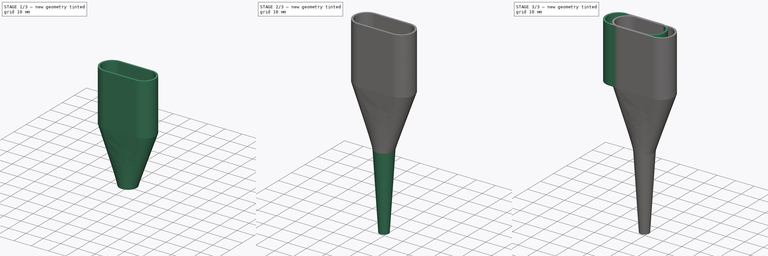
[diagram: build sequence overview — one tinted view per stage of 3, left to right]
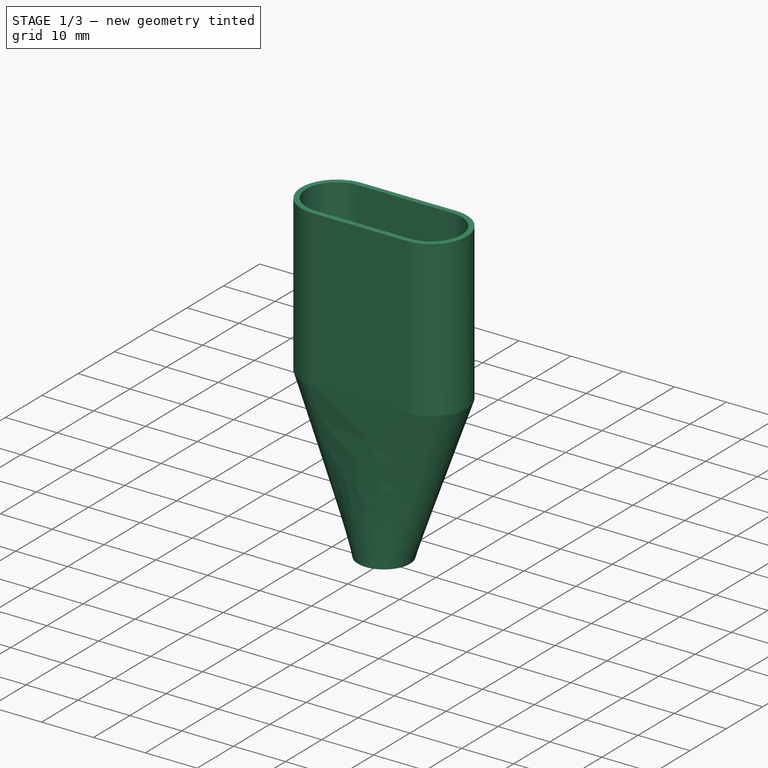
[diagram: stage 1 of 3 — iso view after this stage's code; geometry added in this stage tinted green]
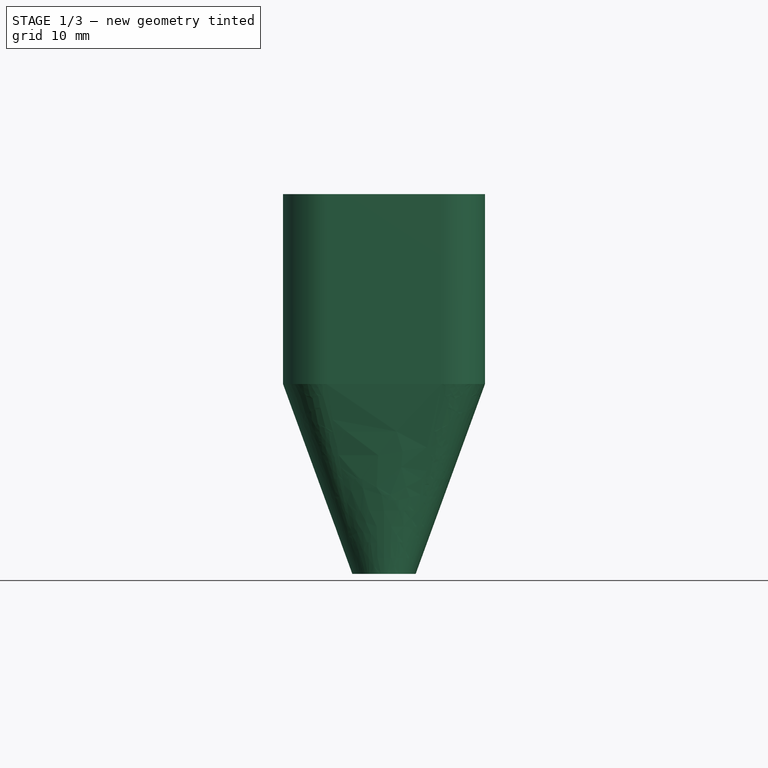
[diagram: stage 1 of 3 — front view after this stage's code; geometry added in this stage tinted green]
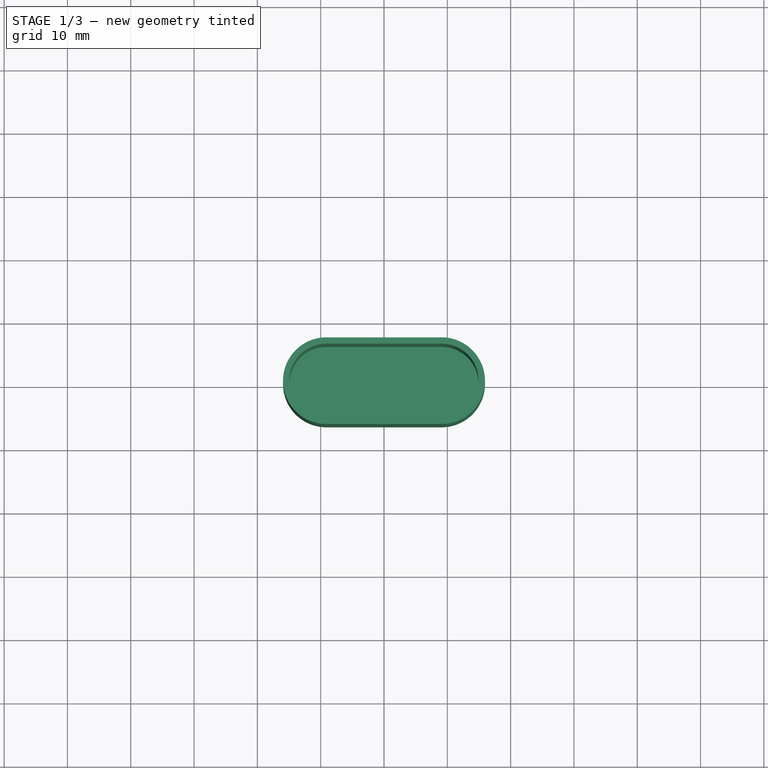
[diagram: stage 1 of 3 — top view after this stage's code; geometry added in this stage tinted green]
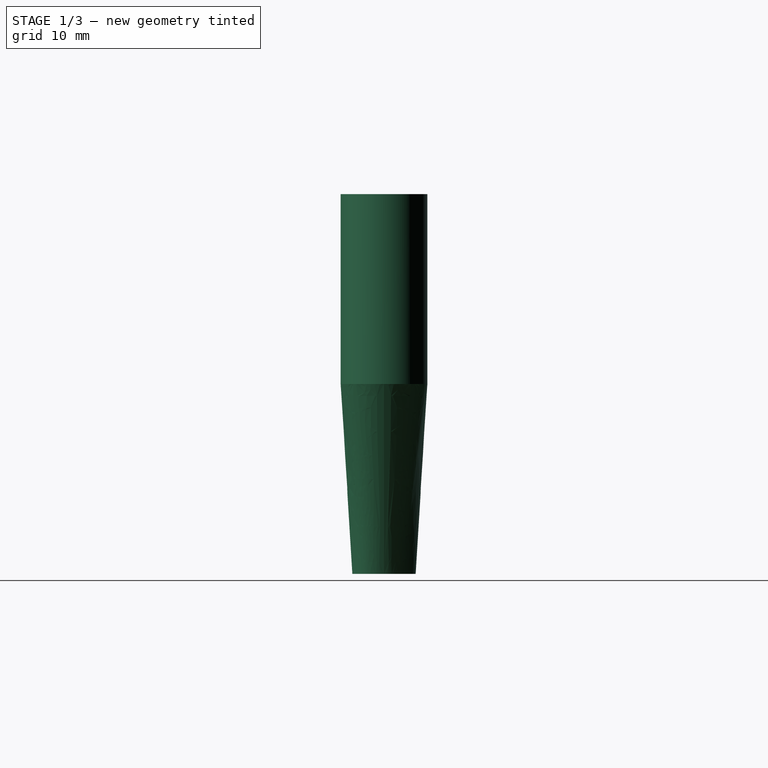
[diagram: stage 1 of 3 — right view after this stage's code; geometry added in this stage tinted green]
FCSTD DOCUMENT  (FreeCAD 1.0R39319 (Git))
Label: vacuum-pipe
License: All rights reserved
LicenseURL: https://en.wikipedia.org/wiki/All_rights_reserved
objects: Sketcher::SketchObject×12, PartDesign::Plane×3, PartDesign::Pad×2, PartDesign::Thickness×2, PartDesign::Body×2, PartDesign::AdditiveLoft×2, PartDesign::SubtractiveLoft×2
note: 53 computed .brp shape members not serialized (recipe doc carries the construction recipe); baked Part::Feature solids carry a one-line shape summary decoded from their .brp

FEATURE [Sketcher::SketchObject] Sketch002
  ArcFitTolerance = 1e-06
  AttachmentSupport = -> [XY_Plane]
  ExternalGeometry = -> [Thickness]
  FullyConstrained = false
  MakeInternals = false
  MapMode = 5
  sketch-geometry (4):
    g0: LineSegment StartX=-14.1861 StartY=-6.5017 StartZ=0 EndX=4.01389 EndY=-6.5017 EndZ=0
    g1: LineSegment StartX=4.0139 StartY=7.1983 StartZ=0 EndX=-14.1861 EndY=7.1983 EndZ=0
    g2: ArcOfCircle CenterX=-14.1861 CenterY=0.348304 CenterZ=0 NormalX=0 NormalY=0 NormalZ=1 AngleXU=0 Radius=6.85 StartAngle=1.5708 EndAngle=4.71239
    g3: ArcOfCircle CenterX=4.0139 CenterY=0.348304 CenterZ=0 NormalX=0 NormalY=0 NormalZ=1 AngleXU=0 Radius=6.85 StartAngle=4.71239 EndAngle=7.85398
  constraints (8):
    c: Horizontal(g0)
    c: Horizontal(g1)
    c: Distance(g1,g1) = 18.2
    c: Distance(g0,g1) = 13.7
    c: Symmetric(g1,g0,g2)
    c: Symmetric(g0,g1,g3)
    c: Coincident(g2,g0)
    c: Coincident(g3,g0)
FEATURE [PartDesign::Plane] DatumPlane
  AttachmentOffset = pos=(0,0,10) rot=(0,0,1;0rad)
  AttachmentSupport = -> [Thickness]
  Length = 60
  MapMode = 5
  Placement = pos=(0,0,-10) rot=(1,0,0;3.14159rad)
  ResizeMode = 0
  Width = 60
FEATURE [Sketcher::SketchObject] Sketch003
  ArcFitTolerance = 1e-06
  AttachmentSupport = -> [DatumPlane]
  FullyConstrained = true
  MakeInternals = false
  MapMode = 5
  Placement = pos=(0,0,-10) rot=(1,0,0;3.14159rad)
FEATURE [PartDesign::Body] Body
  AllowCompound = false
  Group = -> [Sketch001,Pad,Thickness,Sketch002,DatumPlane,Sketch003]
  Origin = -> Origin
  Tip = -> Thickness
FEATURE [Sketcher::SketchObject] Sketch
  ArcFitTolerance = 1e-06
  AttachmentSupport = -> [XY_Plane001]
  FullyConstrained = false
  MakeInternals = false
  MapMode = 5
  sketch-geometry (5):
    g0: LineSegment StartX=-9.1 StartY=-6.85 StartZ=0 EndX=9.1 EndY=-6.85 EndZ=0
    g1: LineSegment StartX=9.1 StartY=6.85 StartZ=0 EndX=-9.1 EndY=6.85 EndZ=0
    g2: GeomPoint [constr] X=0 Y=0 Z=0
    g3: ArcOfCircle CenterX=-9.1 CenterY=0 CenterZ=0 NormalX=0 NormalY=0 NormalZ=1 AngleXU=0 Radius=6.85 StartAngle=1.5708 EndAngle=4.71239
    g4: ArcOfCircle CenterX=9.1 CenterY=0 CenterZ=0 NormalX=0 NormalY=0 NormalZ=1 AngleXU=0 Radius=6.85 StartAngle=4.71239 EndAngle=7.85398
  constraints (13):
    c: Horizontal(g0)
    c: Horizontal(g1)
    c: Symmetric(g1,g0,g2)
    c: Distance(g0,g0) = 18.2
    c: Distance(g0,g1) = 13.7
    c: Coincident(g2,g-1)
    c: Diameter(g3) = 13.7
    c: Symmetric(g1,g0,g3)
    c: Diameter(g4) = 13.7
    c: Symmetric(g0,g1,g4)
    c: Coincident(g3,g0)
    c: Coincident(g3,g1)
    c: Coincident(g4,g0)
FEATURE [PartDesign::Pad] Pad001
  Direction = (0,0,1)
  Length = 30
  Length2 = 10
  Profile = -> Sketch
  ReferenceAxis = -> Sketch [N_Axis]
  Refine = true
  Suppressed = false
  Type = 0
FEATURE [PartDesign::Thickness] Thickness001
  Base = -> Pad001 [Face6,Face5]
  BaseFeature = -> Pad001
  Intersection = false
  Join = 0
  Mode = 0
  Refine = true
  Reversed = true
  SupportTransform = false
  Suppressed = false
  Value = 1
FEATURE [Sketcher::SketchObject] Sketch004  label="outer-1"
  ArcFitTolerance = 1e-06
  AttachmentSupport = -> [XY_Plane001]
  FullyConstrained = false
  MakeInternals = false
  MapMode = 5
  sketch-geometry (5):
    g0: LineSegment StartX=-9.1 StartY=-6.85 StartZ=0 EndX=9.1 EndY=-6.85 EndZ=0
    g1: LineSegment StartX=9.1 StartY=6.85 StartZ=0 EndX=-9.1 EndY=6.85 EndZ=0
    g2: GeomPoint [constr] X=0 Y=0 Z=0
    g3: ArcOfCircle CenterX=9.1 CenterY=0 CenterZ=0 NormalX=0 NormalY=0 NormalZ=1 AngleXU=0 Radius=6.85 StartAngle=4.71239 EndAngle=7.85398
    g4: ArcOfCircle CenterX=-9.1 CenterY=0 CenterZ=0 NormalX=0 NormalY=0 NormalZ=1 AngleXU=0 Radius=6.85 StartAngle=1.5708 EndAngle=4.71239
  constraints (13):
    c: Horizontal(g0)
    c: Horizontal(g1)
    c: Symmetric(g1,g0,g2)
    c: Distance(g0,g0) = 18.2
    c: Distance(g0,g1) = 13.7
    c: Coincident(g2,g-1)
    c: Diameter(g3) = 13.7
    c: Symmetric(g0,g1,g3)
    c: Diameter(g4) = 13.7
    c: Symmetric(g1,g0,g4)
    c: Coincident(g3,g0)
    c: Coincident(g4,g0)
    c: Coincident(g4,g1)
FEATURE [Sketcher::SketchObject] Sketch005  label="inner-1"
  ArcFitTolerance = 1e-06
  AttachmentSupport = -> [XY_Plane001]
  FullyConstrained = false
  MakeInternals = false
  MapMode = 5
  sketch-geometry (5):
    g0: LineSegment StartX=-9.1 StartY=-6 StartZ=0 EndX=9.1 EndY=-6 EndZ=0
    g1: LineSegment StartX=9.1 StartY=6 StartZ=0 EndX=-9.1 EndY=6 EndZ=0
    g2: GeomPoint [constr] X=0 Y=0 Z=0
    g3: ArcOfCircle CenterX=-9.1 CenterY=0 CenterZ=0 NormalX=0 NormalY=0 NormalZ=1 AngleXU=0 Radius=6 StartAngle=1.5708 EndAngle=4.71239
    g4: ArcOfCircle CenterX=9.1 CenterY=0 CenterZ=0 NormalX=0 NormalY=0 NormalZ=1 AngleXU=0 Radius=6 StartAngle=4.71239 EndAngle=7.85398
  constraints (13):
    c: Horizontal(g0)
    c: Horizontal(g1)
    c: Symmetric(g1,g0,g2)
    c: Distance(g0,g0) = 18.2
    c: Distance(g0,g1) = 12
    c: Coincident(g2,g-1)
    c: Diameter(g3) = 12
    c: Symmetric(g1,g0,g3)
    c: Diameter(g4) = 12
    c: Symmetric(g0,g1,g4)
    c: Coincident(g3,g0)
    c: Coincident(g3,g1)
    c: Coincident(g4,g0)
FEATURE [PartDesign::Plane] DatumPlane001  label="plane-2"
  AttachmentOffset = pos=(0,0,30) rot=(0,0,1;0rad)
  AttachmentSupport = -> [Thickness001]
  Length = 60
  MapMode = 5
  Placement = pos=(0,0,-30) rot=(1,0,0;3.14159rad)
  ResizeMode = 0
  Width = 60
FEATURE [Sketcher::SketchObject] Sketch006  label="outer-2"
  ArcFitTolerance = 1e-06
  AttachmentSupport = -> [DatumPlane001]
  FullyConstrained = true
  MakeInternals = false
  MapMode = 5
  Placement = pos=(0,0,-30) rot=(1,0,0;3.14159rad)
  sketch-geometry (1):
    g0: Circle CenterX=0 CenterY=0 CenterZ=0 NormalX=0 NormalY=0 NormalZ=1 AngleXU=0 Radius=5
  constraints (2):
    c: Diameter(g0) = 10
    c: Coincident(g0,g-1)
FEATURE [Sketcher::SketchObject] Sketch007  label="inner-2"
  ArcFitTolerance = 1e-06
  AttachmentSupport = -> [DatumPlane001]
  FullyConstrained = true
  MakeInternals = false
  MapMode = 5
  Placement = pos=(0,0,-30) rot=(1,0,0;3.14159rad)
  sketch-geometry (1):
    g0: Circle CenterX=0 CenterY=0 CenterZ=0 NormalX=0 NormalY=0 NormalZ=1 AngleXU=0 Radius=4
  constraints (2):
    c: Diameter(g0) = 8
    c: Coincident(g0,g-1)
FEATURE [PartDesign::AdditiveLoft] AdditiveLoft
  BaseFeature = -> Thickness001
  Closed = false
  Profile = -> Sketch004
  Refine = true
  Ruled = false
  Sections = -> [Sketch006]
  Suppressed = false
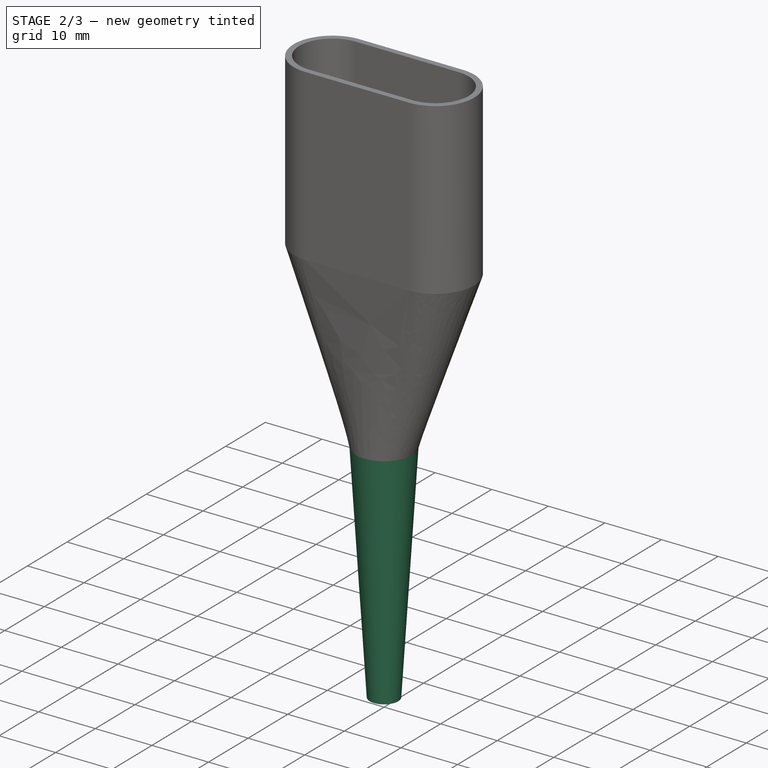
[diagram: stage 2 of 3 — iso view after this stage's code; geometry added in this stage tinted green]
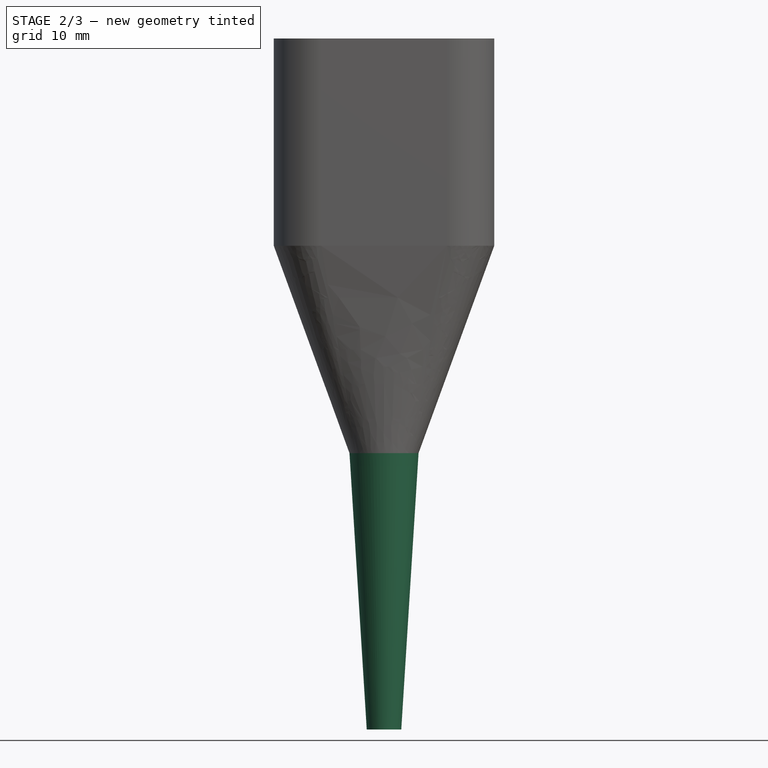
[diagram: stage 2 of 3 — front view after this stage's code; geometry added in this stage tinted green]
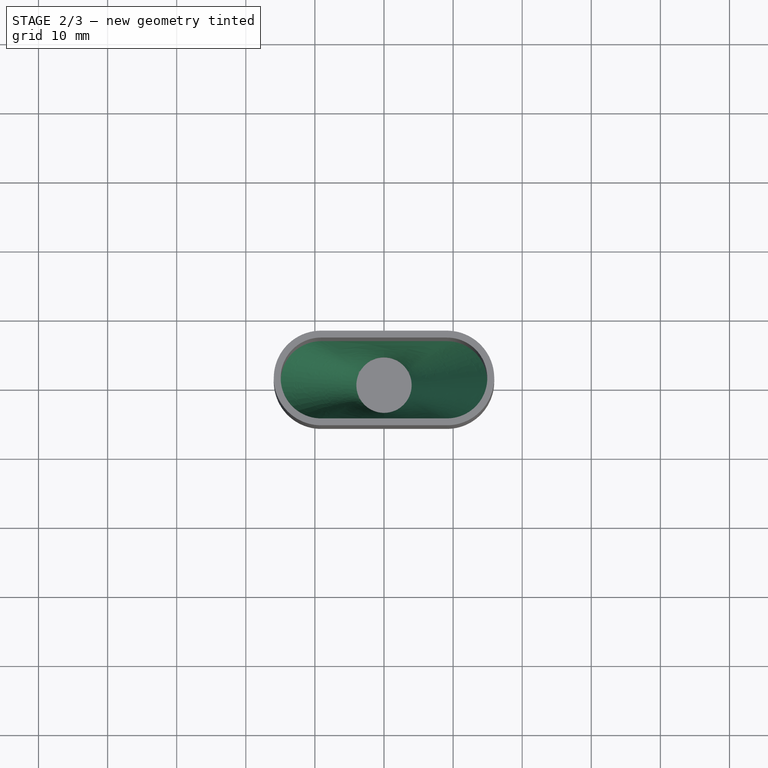
[diagram: stage 2 of 3 — top view after this stage's code; geometry added in this stage tinted green]
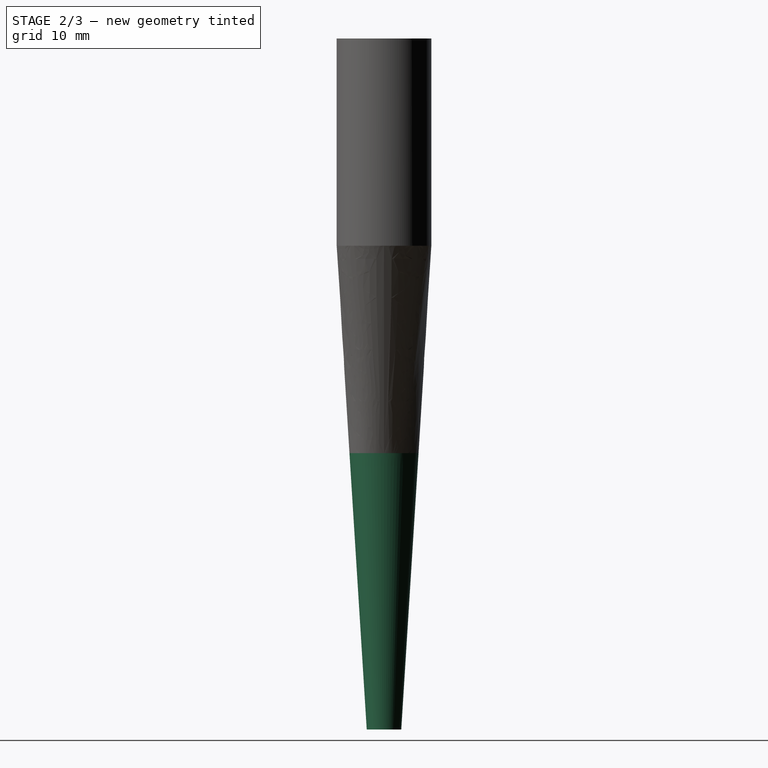
[diagram: stage 2 of 3 — right view after this stage's code; geometry added in this stage tinted green]
FEATURE [PartDesign::SubtractiveLoft] SubtractiveLoft
  BaseFeature = -> AdditiveLoft
  Closed = false
  Profile = -> Sketch005
  Refine = true
  Ruled = false
  Sections = -> [Sketch007]
  Suppressed = false
FEATURE [PartDesign::Plane] DatumPlane002  label="plane-3"
  AttachmentOffset = pos=(0,0,40) rot=(0,0,1;0rad)
  AttachmentSupport = -> [SubtractiveLoft]
  Length = 60
  MapMode = 5
  Placement = pos=(0,0,-70) rot=(1,0,0;3.14159rad)
  ResizeMode = 0
  Width = 60
FEATURE [Sketcher::SketchObject] Sketch008  label="outer-3"
  ArcFitTolerance = 1e-06
  AttachmentSupport = -> [DatumPlane002]
  FullyConstrained = true
  MakeInternals = false
  MapMode = 5
  Placement = pos=(0,0,-70) rot=(1,0,0;3.14159rad)
  sketch-geometry (1):
    g0: Circle CenterX=0 CenterY=0 CenterZ=0 NormalX=0 NormalY=0 NormalZ=1 AngleXU=0 Radius=2.5
  constraints (2):
    c: Diameter(g0) = 5
    c: Coincident(g0,g-1)
FEATURE [Sketcher::SketchObject] Sketch009  label="inner-3"
  ArcFitTolerance = 1e-06
  AttachmentSupport = -> [DatumPlane002]
  FullyConstrained = true
  MakeInternals = false
  MapMode = 5
  Placement = pos=(0,0,-70) rot=(1,0,0;3.14159rad)
  sketch-geometry (1):
    g0: Circle CenterX=0 CenterY=0 CenterZ=0 NormalX=0 NormalY=0 NormalZ=1 AngleXU=0 Radius=2
  constraints (2):
    c: Diameter(g0) = 4
    c: Coincident(g0,g-1)
FEATURE [Sketcher::SketchObject] Sketch010  label="outer-2b"
  ArcFitTolerance = 1e-06
  AttachmentSupport = -> [DatumPlane001]
  FullyConstrained = true
  MakeInternals = false
  MapMode = 5
  Placement = pos=(0,0,-30) rot=(1,0,0;3.14159rad)
  sketch-geometry (1):
    g0: Circle CenterX=0 CenterY=0 CenterZ=0 NormalX=0 NormalY=0 NormalZ=1 AngleXU=0 Radius=5
  constraints (2):
    c: Diameter(g0) = 10
    c: Coincident(g0,g-1)
FEATURE [PartDesign::AdditiveLoft] AdditiveLoft001
  BaseFeature = -> SubtractiveLoft
  Closed = false
  Profile = -> Sketch010
  Refine = true
  Ruled = false
  Sections = -> [Sketch008]
  Suppressed = false
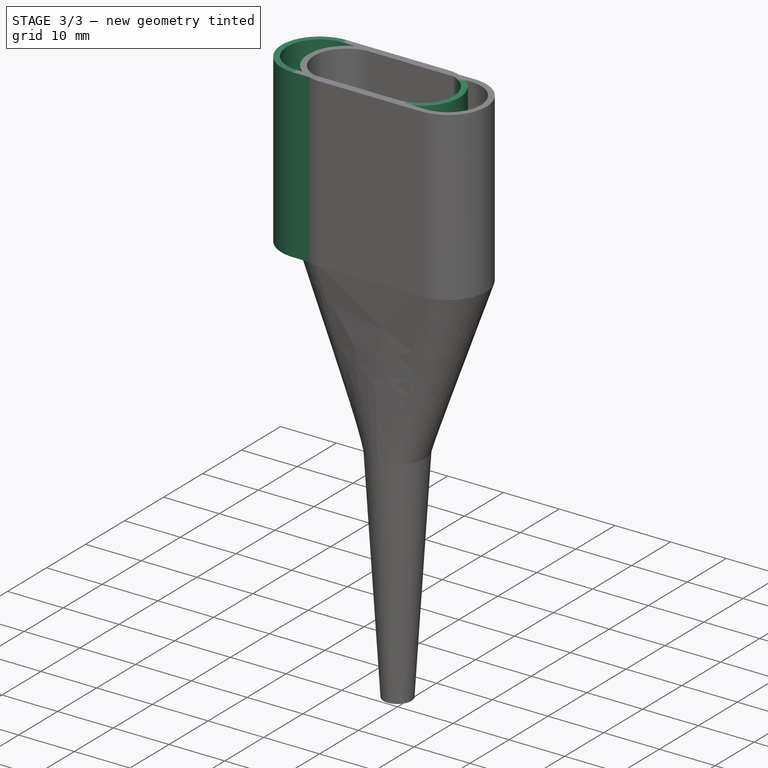
[diagram: stage 3 of 3 — iso view after this stage's code; geometry added in this stage tinted green]
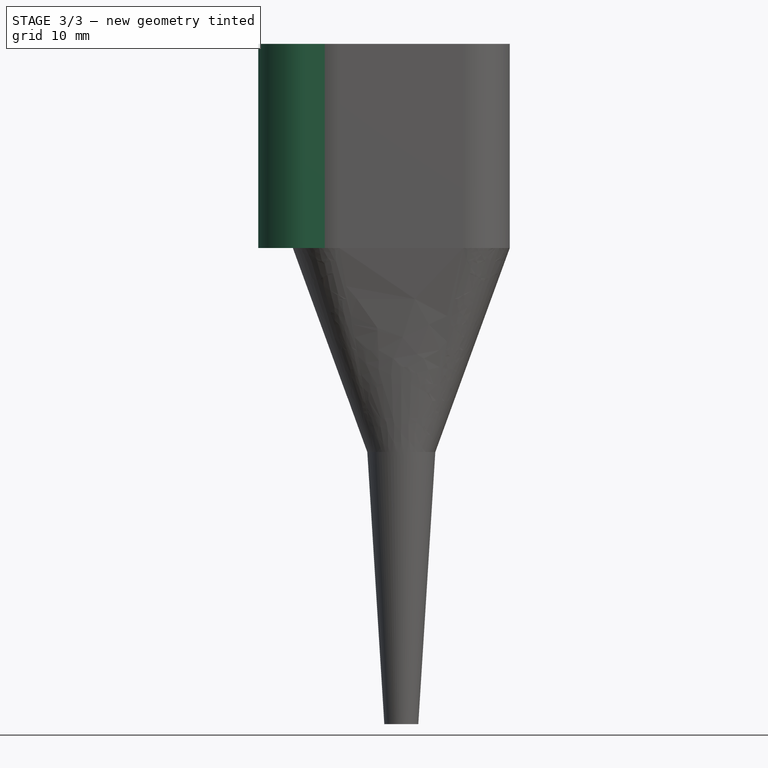
[diagram: stage 3 of 3 — front view after this stage's code; geometry added in this stage tinted green]
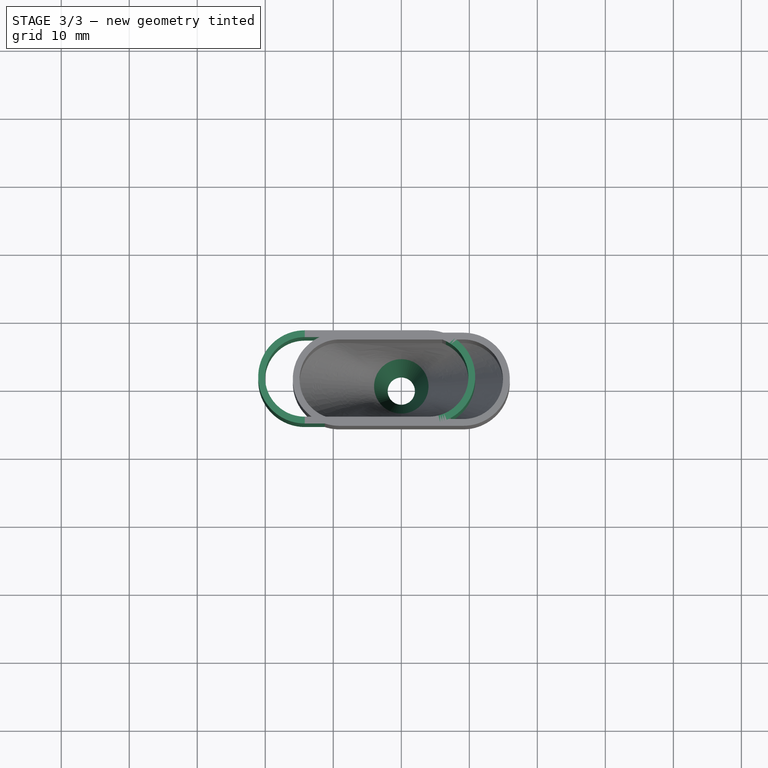
[diagram: stage 3 of 3 — top view after this stage's code; geometry added in this stage tinted green]
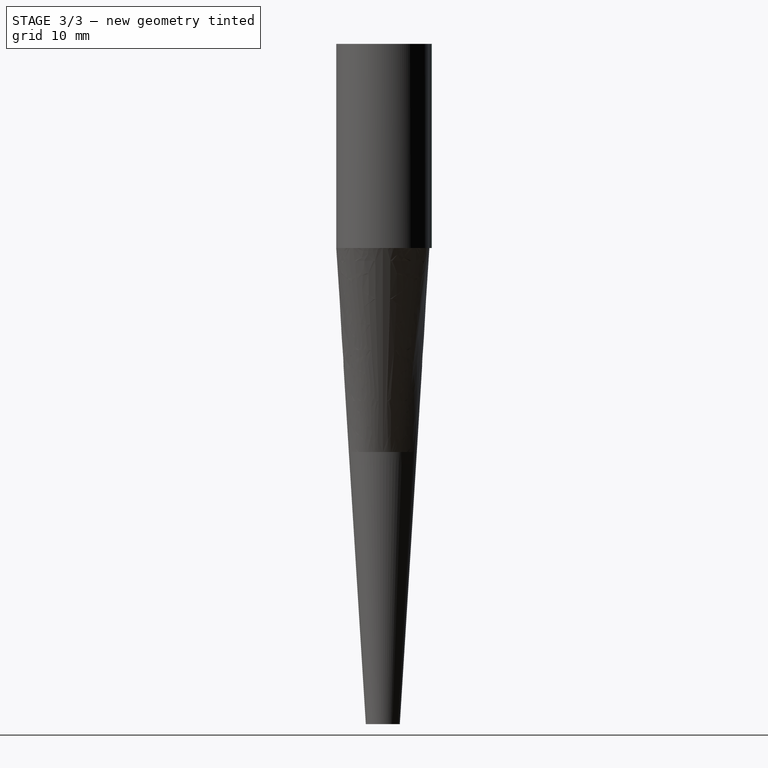
[diagram: stage 3 of 3 — right view after this stage's code; geometry added in this stage tinted green]
FEATURE [Sketcher::SketchObject] Sketch001
  ArcFitTolerance = 1e-06
  AttachmentSupport = -> [XY_Plane]
  FullyConstrained = false
  MakeInternals = false
  MapMode = 5
  sketch-geometry (4):
    g0: LineSegment StartX=-14.1864 StartY=-6.5017 StartZ=0 EndX=4.01358 EndY=-6.5017 EndZ=0
    g1: LineSegment StartX=4.01 StartY=7.1983 StartZ=0 EndX=-14.19 EndY=7.1983 EndZ=0
    g2: ArcOfCircle CenterX=-14.1882 CenterY=0.348304 CenterZ=0 NormalX=0 NormalY=0 NormalZ=1 AngleXU=0 Radius=6.85 StartAngle=1.57106 EndAngle=4.71265
    g3: ArcOfCircle CenterX=4.01179 CenterY=0.348304 CenterZ=0 NormalX=0 NormalY=0 NormalZ=1 AngleXU=0 Radius=6.85 StartAngle=4.71265 EndAngle=7.85368
  constraints (8):
    c: Distance(g1,g1) = 18.2
    c: Distance(g0,g1) = 13.7
    c: Diameter(g2) = 13.7
    c: Symmetric(g1,g0,g2)
    c: Diameter(g3) = 13.7
    c: Symmetric(g0,g1,g3)
    c: Coincident(g2,g0)
    c: Coincident(g3,g0)
FEATURE [PartDesign::Pad] Pad
  Direction = (0,0,1)
  Length = 30
  Length2 = 10
  Profile = -> Sketch001
  ReferenceAxis = -> Sketch001 [N_Axis]
  Refine = true
  Suppressed = false
  Type = 0
FEATURE [PartDesign::Thickness] Thickness
  Base = -> Pad [Face6,Face5]
  BaseFeature = -> Pad
  Intersection = false
  Join = 0
  Mode = 0
  Refine = true
  Reversed = true
  SupportTransform = false
  Suppressed = false
  Value = 1
FEATURE [Sketcher::SketchObject] Sketch011  label="inner-2b"
  ArcFitTolerance = 1e-06
  AttachmentSupport = -> [DatumPlane001]
  FullyConstrained = true
  MakeInternals = false
  MapMode = 5
  Placement = pos=(0,0,-30) rot=(1,0,0;3.14159rad)
  sketch-geometry (1):
    g0: Circle CenterX=0 CenterY=0 CenterZ=0 NormalX=0 NormalY=0 NormalZ=1 AngleXU=0 Radius=4
  constraints (2):
    c: Diameter(g0) = 8
    c: Coincident(g0,g-1)
FEATURE [PartDesign::SubtractiveLoft] SubtractiveLoft001
  BaseFeature = -> AdditiveLoft001
  Closed = false
  Profile = -> Sketch011
  Refine = true
  Ruled = false
  Sections = -> [Sketch009]
  Suppressed = false
FEATURE [PartDesign::Body] Body001
  AllowCompound = false
  Group = -> [Sketch,Pad001,Thickness001,Sketch004,Sketch005,DatumPlane001,Sketch006,Sketch007,AdditiveLoft,SubtractiveLoft,Sketch011,Sketch010,DatumPlane002,Sketch008,Sketch009,AdditiveLoft001,SubtractiveLoft001]
  Origin = -> Origin001
  Tip = -> SubtractiveLoft001
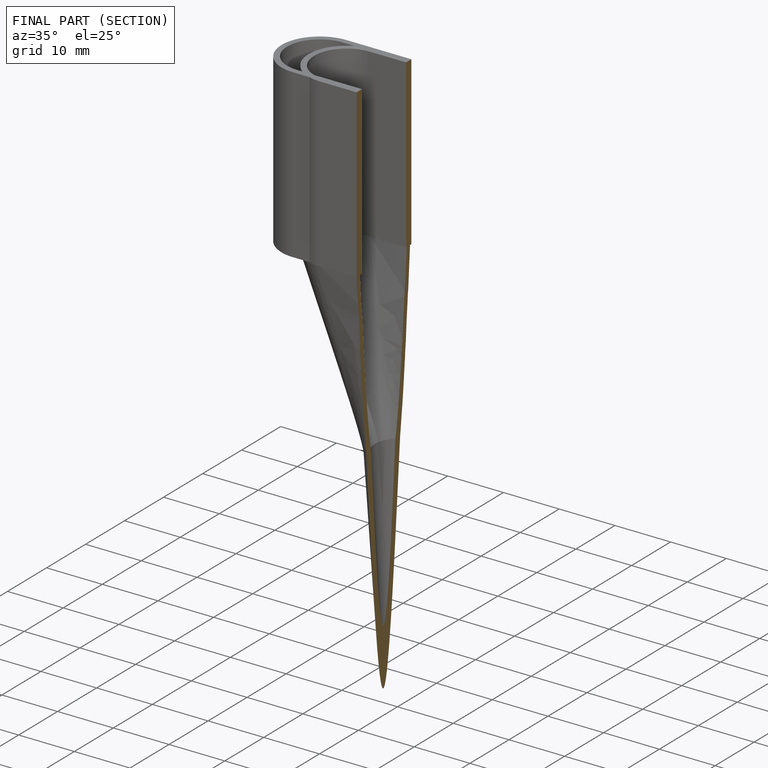
[diagram: finished part — half-section view (interior)]
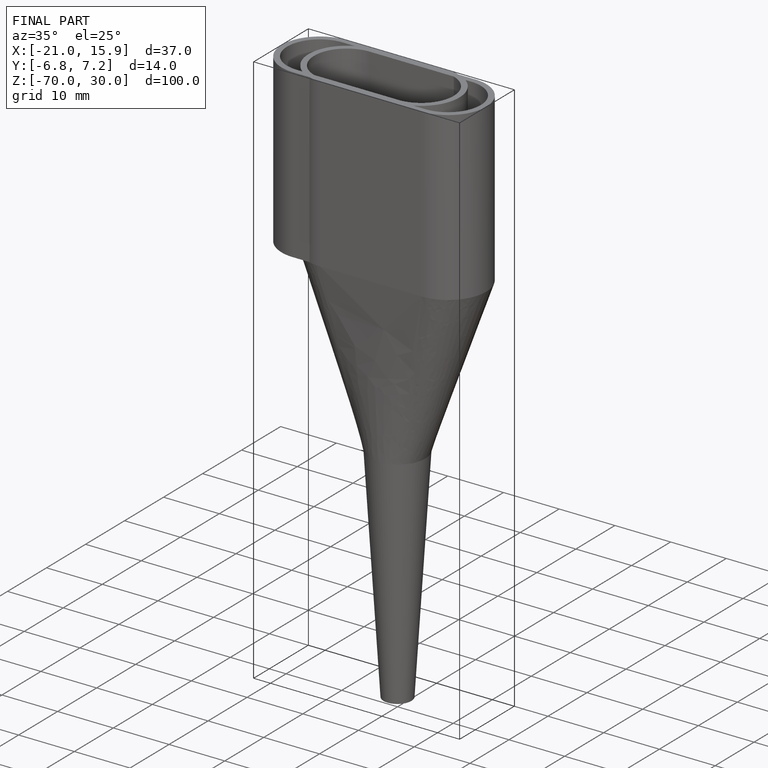
[diagram: finished part — iso view with bounding-box wireframe]
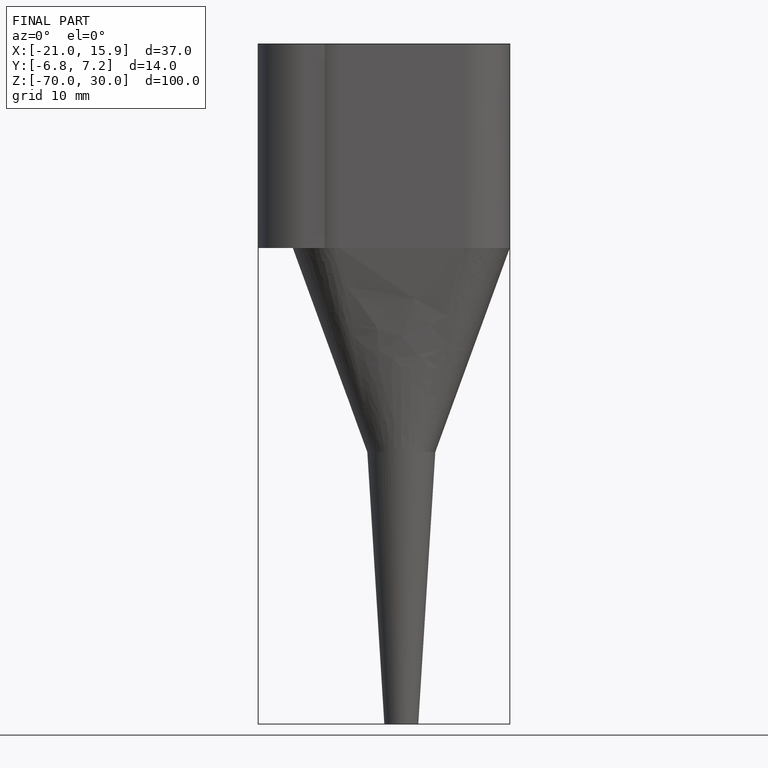
[diagram: finished part — front view with bounding-box wireframe]
